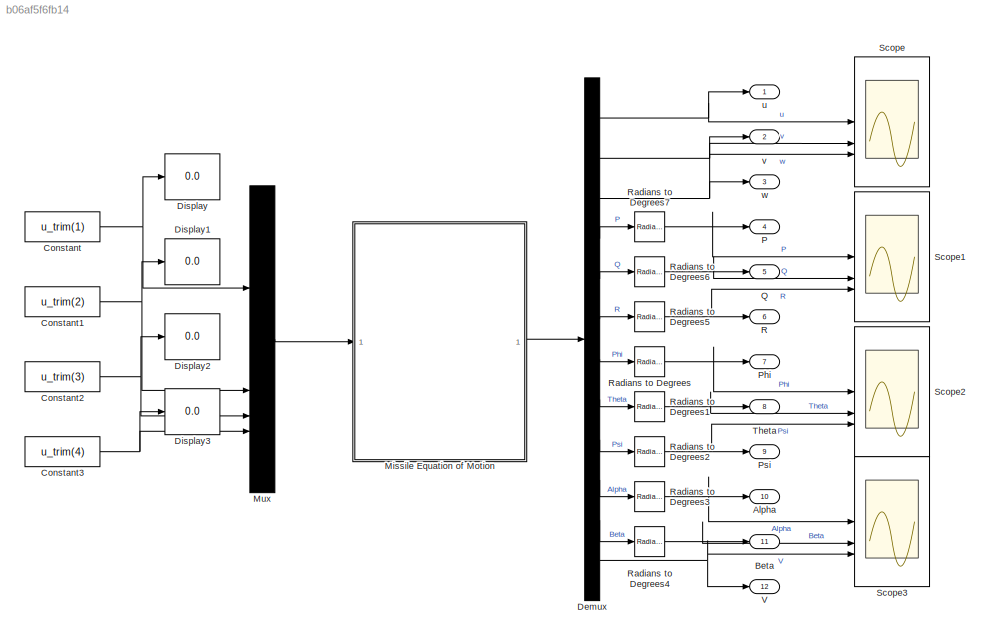
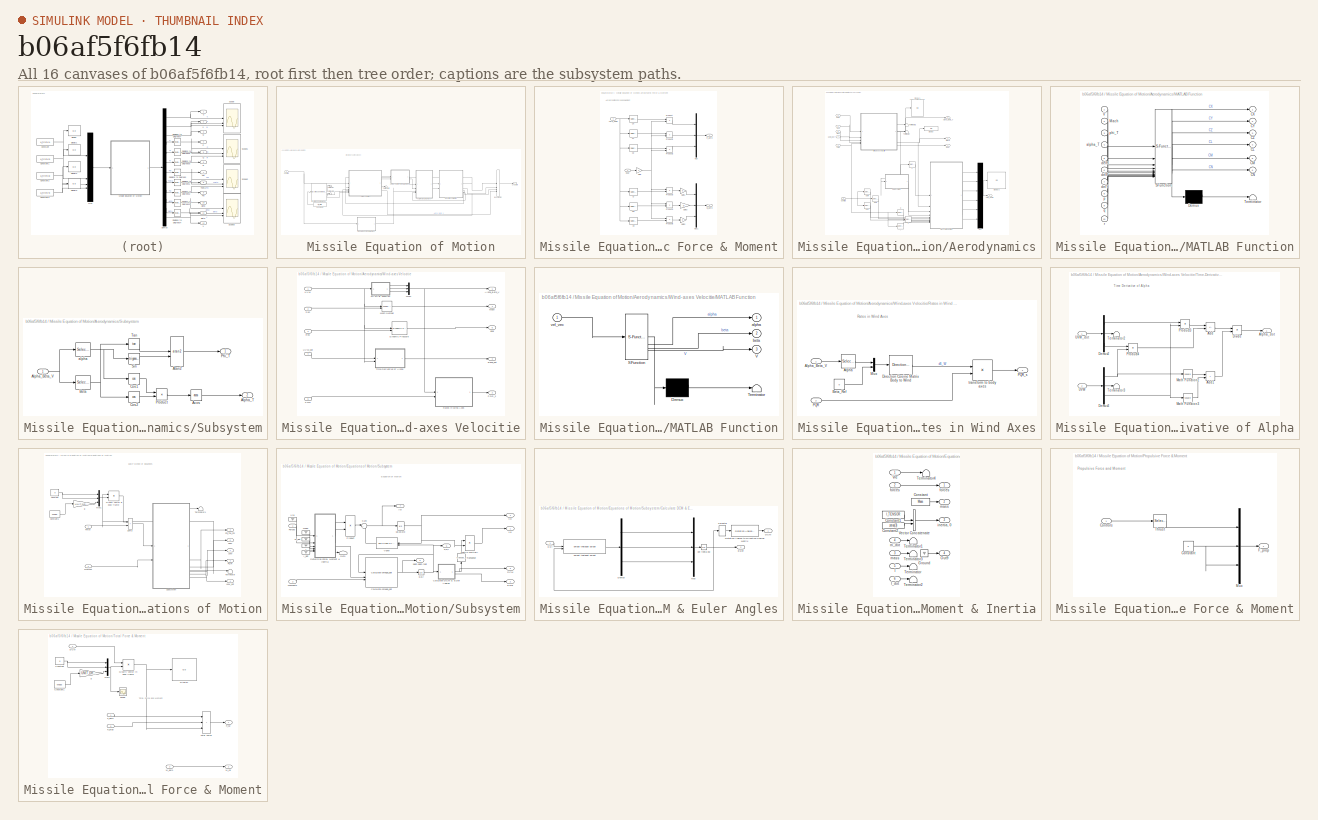
[diagram: thumbnail index - all 16 canvases of the model, root first then tree order]
MODEL slx_b06af5f6fb14
KIND model
CONFIG AbsTol = auto
CONFIG EnableMultiTasking = off
CONFIG FixedStep = auto
CONFIG InitFcn = UAV_Data\nSim_Parameters
CONFIG MaxStep = auto
CONFIG MinStep = auto
CONFIG RelTol = 1e-3
CONFIG SampleTimeConstraint = Unconstrained
CONFIG SolverName = VariableStepAuto
CONFIG StartTime = 0.0
CONFIG StopTime = 50
BLOCK [Outport] Alpha
  Port = 10
BLOCK [Outport] Beta
  Port = 11
BLOCK [Constant] Constant
  Value = u_trim(1)
BLOCK [Constant] Constant1
  Value = u_trim(2)
BLOCK [Constant] Constant2
  Value = u_trim(3)
BLOCK [Constant] Constant3
  Value = u_trim(4)
BLOCK [Demux] Demux
  Outputs = 12
BLOCK [Display] Display
  Decimation = 1
BLOCK [Display] Display1
  Decimation = 1
BLOCK [Display] Display2
  Decimation = 1
BLOCK [Display] Display3
  Decimation = 1
BLOCK [SubSystem] Missile Equation of Motion
BLOCK [SubSystem] Missile Equation of Motion/Aerodynamic Force & Moment
BLOCK [Inport] Missile Equation of Motion/Aerodynamic Force & Moment/Aero_Coeff
BLOCK [Selector] Missile Equation of Motion/Aerodynamic Force & Moment/CX
  IndexOptions = Index vector (dialog)
  Indices = [1]
  InputPortWidth = 6
  OutputSizes = 1
BLOCK [Selector] Missile Equation of Motion/Aerodynamic Force & Moment/CY
  IndexOptions = Index vector (dialog)
  Indices = [2]
  InputPortWidth = 6
  OutputSizes = 1
BLOCK [Selector] Missile Equation of Motion/Aerodynamic Force & Moment/CZ
  IndexOptions = Index vector (dialog)
  Indices = [3]
  InputPortWidth = 6
  OutputSizes = 1
BLOCK [Selector] Missile Equation of Motion/Aerodynamic Force & Moment/Cl
  IndexOptions = Index vector (dialog)
  Indices = [4]
  InputPortWidth = 6
  OutputSizes = 1
BLOCK [Selector] Missile Equation of Motion/Aerodynamic Force & Moment/Cm
  IndexOptions = Index vector (dialog)
  Indices = [5]
  InputPortWidth = 6
  OutputSizes = 1
BLOCK [Selector] Missile Equation of Motion/Aerodynamic Force & Moment/Cn
  IndexOptions = Index vector (dialog)
  Indices = [6]
  InputPortWidth = 6
  OutputSizes = 1
BLOCK [Outport] Missile Equation of Motion/Aerodynamic Force & Moment/F_aero
BLOCK [Gain] Missile Equation of Motion/Aerodynamic Force & Moment/Gain
  Gain = S
BLOCK [Gain] Missile Equation of Motion/Aerodynamic Force & Moment/Gain1
  Gain = D
BLOCK [Gain] Missile Equation of Motion/Aerodynamic Force & Moment/Gain2
  Gain = D
BLOCK [Gain] Missile Equation of Motion/Aerodynamic Force & Moment/Gain3
  Gain = D
BLOCK [Outport] Missile Equation of Motion/Aerodynamic Force & Moment/M_aero
  Port = 2
BLOCK [Mux] Missile Equation of Motion/Aerodynamic Force & Moment/Mux
  DisplayOption = bar
  Inputs = 3
BLOCK [Mux] Missile Equation of Motion/Aerodynamic Force & Moment/Mux1
  DisplayOption = bar
  Inputs = 3
BLOCK [Product] Missile Equation of Motion/Aerodynamic Force & Moment/Product
BLOCK [Product] Missile Equation of Motion/Aerodynamic Force & Moment/Product1
BLOCK [Product] Missile Equation of Motion/Aerodynamic Force & Moment/Product2
BLOCK [Product] Missile Equation of Motion/Aerodynamic Force & Moment/Product3
BLOCK [Product] Missile Equation of Motion/Aerodynamic Force & Moment/Product4
BLOCK [Product] Missile Equation of Motion/Aerodynamic Force & Moment/Product5
BLOCK [Inport] Missile Equation of Motion/Aerodynamic Force & Moment/qbar
  Port = 2
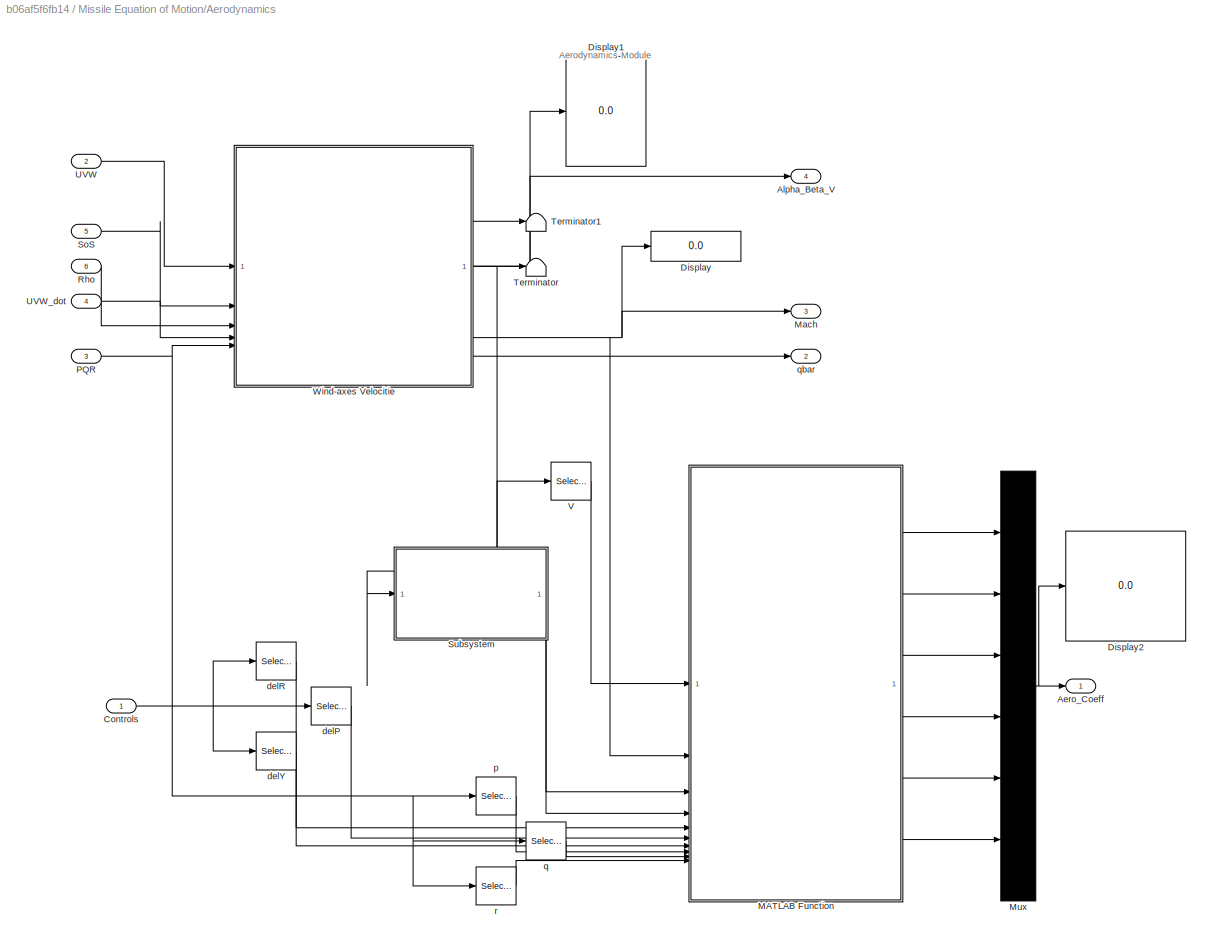
BLOCK [SubSystem] Missile Equation of Motion/Aerodynamics
BLOCK [Outport] Missile Equation of Motion/Aerodynamics/Aero_Coeff
BLOCK [Outport] Missile Equation of Motion/Aerodynamics/Alpha_Beta_V
  Port = 4
BLOCK [Inport] Missile Equation of Motion/Aerodynamics/Controls
BLOCK [Display] Missile Equation of Motion/Aerodynamics/Display
  Decimation = 1
BLOCK [Display] Missile Equation of Motion/Aerodynamics/Display1
  Decimation = 1
BLOCK [Display] Missile Equation of Motion/Aerodynamics/Display2
  Decimation = 1
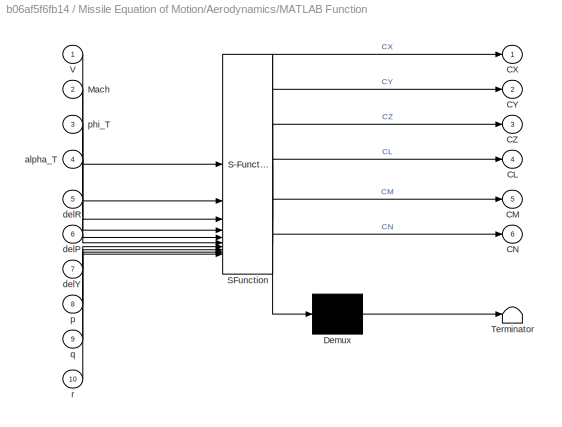
BLOCK [SubSystem] Missile Equation of Motion/Aerodynamics/MATLAB Function
  ErrorFcn = Stateflow.Translate.translate
  LibrarySourceBlock = simulink/User-Defined\nFunctions/MATLAB Function
  PermitHierarchicalResolution = ExplicitOnly
  SFBlockType = MATLAB Function
  TreatAsAtomicUnit = on
BLOCK [Demux] Missile Equation of Motion/Aerodynamics/MATLAB Function/ Demux 
  Outputs = 1
BLOCK [S-Function] Missile Equation of Motion/Aerodynamics/MATLAB Function/ SFunction 
  EnableBusSupport = on
  FunctionName = sf_sfun
  PortCounts = [10 7]
  SFcnIsStateOwnerBlock = off
  SFunctionDeploymentMode = off
  Tag = Stateflow S-Function 2
BLOCK [Terminator] Missile Equation of Motion/Aerodynamics/MATLAB Function/ Terminator 
BLOCK [Outport] Missile Equation of Motion/Aerodynamics/MATLAB Function/CL
  Port = 4
BLOCK [Outport] Missile Equation of Motion/Aerodynamics/MATLAB Function/CM
  Port = 5
BLOCK [Outport] Missile Equation of Motion/Aerodynamics/MATLAB Function/CN
  Port = 6
BLOCK [Outport] Missile Equation of Motion/Aerodynamics/MATLAB Function/CX
BLOCK [Outport] Missile Equation of Motion/Aerodynamics/MATLAB Function/CY
  Port = 2
BLOCK [Outport] Missile Equation of Motion/Aerodynamics/MATLAB Function/CZ
  Port = 3
BLOCK [Inport] Missile Equation of Motion/Aerodynamics/MATLAB Function/Mach
  Port = 2
BLOCK [Inport] Missile Equation of Motion/Aerodynamics/MATLAB Function/V
BLOCK [Inport] Missile Equation of Motion/Aerodynamics/MATLAB Function/alpha_T
  Port = 4
BLOCK [Inport] Missile Equation of Motion/Aerodynamics/MATLAB Function/delP
  Port = 6
BLOCK [Inport] Missile Equation of Motion/Aerodynamics/MATLAB Function/delR
  Port = 5
BLOCK [Inport] Missile Equation of Motion/Aerodynamics/MATLAB Function/delY
  Port = 7
BLOCK [Inport] Missile Equation of Motion/Aerodynamics/MATLAB Function/p
  Port = 8
BLOCK [Inport] Missile Equation of Motion/Aerodynamics/MATLAB Function/phi_T
  Port = 3
BLOCK [Inport] Missile Equation of Motion/Aerodynamics/MATLAB Function/q
  Port = 9
BLOCK [Inport] Missile Equation of Motion/Aerodynamics/MATLAB Function/r
  Port = 10
BLOCK [Outport] Missile Equation of Motion/Aerodynamics/Mach
  Port = 3
BLOCK [Mux] Missile Equation of Motion/Aerodynamics/Mux
  DisplayOption = bar
  Inputs = 6
BLOCK [Inport] Missile Equation of Motion/Aerodynamics/PQR
  Port = 3
BLOCK [Inport] Missile Equation of Motion/Aerodynamics/Rho
  Port = 6
BLOCK [Inport] Missile Equation of Motion/Aerodynamics/SoS
  Port = 5
BLOCK [SubSystem] Missile Equation of Motion/Aerodynamics/Subsystem
BLOCK [Trigonometry] Missile Equation of Motion/Aerodynamics/Subsystem/Acos
  Operator = acos
BLOCK [Inport] Missile Equation of Motion/Aerodynamics/Subsystem/Alpha_Beta_V
BLOCK [Outport] Missile Equation of Motion/Aerodynamics/Subsystem/Alpha_T
  Port = 2
BLOCK [Trigonometry] Missile Equation of Motion/Aerodynamics/Subsystem/Atan2
  Operator = atan2
BLOCK [Selector] Missile Equation of Motion/Aerodynamics/Subsystem/Beta
  IndexOptions = Index vector (dialog)
  Indices = [2]
  InputPortWidth = 3
  OutputSizes = 1
BLOCK [Trigonometry] Missile Equation of Motion/Aerodynamics/Subsystem/Cos1
  Operator = cos
BLOCK [Trigonometry] Missile Equation of Motion/Aerodynamics/Subsystem/Cos2
  Operator = cos
BLOCK [Outport] Missile Equation of Motion/Aerodynamics/Subsystem/Phi_T
BLOCK [Product] Missile Equation of Motion/Aerodynamics/Subsystem/Product
BLOCK [Trigonometry] Missile Equation of Motion/Aerodynamics/Subsystem/Sin
BLOCK [Trigonometry] Missile Equation of Motion/Aerodynamics/Subsystem/Tan
  Operator = tan
BLOCK [Selector] Missile Equation of Motion/Aerodynamics/Subsystem/alpha
  IndexOptions = Index vector (dialog)
  Indices = [1]
  InputPortWidth = 3
  OutputSizes = 1
BLOCK [Terminator] Missile Equation of Motion/Aerodynamics/Terminator
BLOCK [Terminator] Missile Equation of Motion/Aerodynamics/Terminator1
BLOCK [Inport] Missile Equation of Motion/Aerodynamics/UVW
  Port = 2
BLOCK [Inport] Missile Equation of Motion/Aerodynamics/UVW_dot 
  Port = 4
BLOCK [Selector] Missile Equation of Motion/Aerodynamics/V
  IndexOptions = Index vector (dialog)
  Indices = [3]
  InputPortWidth = 3
  OutputSizes = 1
BLOCK [SubSystem] Missile Equation of Motion/Aerodynamics/Wind-axes Velocitie
BLOCK [Outport] Missile Equation of Motion/Aerodynamics/Wind-axes Velocitie/Alpha_Beta_V
BLOCK [Reference] Missile Equation of Motion/Aerodynamics/Wind-axes Velocitie/Dynamic Pressure  REF=aerolibasang/Dynamic Pressure
  SourceBlock = aerolibasang/Dynamic Pressure
  SourceType = Dynamic Pressure
BLOCK [SubSystem] Missile Equation of Motion/Aerodynamics/Wind-axes Velocitie/MATLAB Function
  ErrorFcn = Stateflow.Translate.translate
  LibrarySourceBlock = simulink/User-Defined\nFunctions/MATLAB Function
  PermitHierarchicalResolution = ExplicitOnly
  SFBlockType = MATLAB Function
  TreatAsAtomicUnit = on
BLOCK [Demux] Missile Equation of Motion/Aerodynamics/Wind-axes Velocitie/MATLAB Function/ Demux 
  Outputs = 1
BLOCK [S-Function] Missile Equation of Motion/Aerodynamics/Wind-axes Velocitie/MATLAB Function/ SFunction 
  EnableBusSupport = on
  FunctionName = sf_sfun
  PortCounts = [1 4]
  SFcnIsStateOwnerBlock = off
  SFunctionDeploymentMode = off
  Tag = Stateflow S-Function 1
BLOCK [Terminator] Missile Equation of Motion/Aerodynamics/Wind-axes Velocitie/MATLAB Function/ Terminator 
BLOCK [Outport] Missile Equation of Motion/Aerodynamics/Wind-axes Velocitie/MATLAB Function/V
  Port = 3
BLOCK [Outport] Missile Equation of Motion/Aerodynamics/Wind-axes Velocitie/MATLAB Function/alpha
BLOCK [Outport] Missile Equation of Motion/Aerodynamics/Wind-axes Velocitie/MATLAB Function/beta
  Port = 2
BLOCK [Inport] Missile Equation of Motion/Aerodynamics/Wind-axes Velocitie/MATLAB Function/vel_vec
BLOCK [Outport] Missile Equation of Motion/Aerodynamics/Wind-axes Velocitie/Mach
  Port = 4
BLOCK [Reference] Missile Equation of Motion/Aerodynamics/Wind-axes Velocitie/Mach Number  REF=aerolibasang/Mach Number
  SourceBlock = aerolibasang/Mach Number
  SourceType = Mach Number
BLOCK [Mux] Missile Equation of Motion/Aerodynamics/Wind-axes Velocitie/Mux1
  DisplayOption = bar
  Inputs = 3
BLOCK [Inport] Missile Equation of Motion/Aerodynamics/Wind-axes Velocitie/PQR
  Port = 5
BLOCK [Outport] Missile Equation of Motion/Aerodynamics/Wind-axes Velocitie/PQR_s
  Port = 2
BLOCK [SubSystem] Missile Equation of Motion/Aerodynamics/Wind-axes Velocitie/Rates in Wind Axes
BLOCK [Selector] Missile Equation of Motion/Aerodynamics/Wind-axes Velocitie/Rates in Wind Axes/Alpha
  IndexOptions = Index vector (dialog)
  Indices = [1]
  InputPortWidth = 3
  OutputSizes = 1
BLOCK [Inport] Missile Equation of Motion/Aerodynamics/Wind-axes Velocitie/Rates in Wind Axes/Alpha_Beta_V
BLOCK [Constant] Missile Equation of Motion/Aerodynamics/Wind-axes Velocitie/Rates in Wind Axes/Beta_Ref
  Value = 0
BLOCK [Reference] Missile Equation of Motion/Aerodynamics/Wind-axes Velocitie/Rates in Wind Axes/Direction Cosine Matrix Body to Wind  REF=aerolibtransform2/Direction Cosine Matrix
Body to Wind
  SourceBlock = aerolibtransform2/Direction Cosine Matrix\nBody to Wind
  SourceType = DCM Body to Wind
BLOCK [Mux] Missile Equation of Motion/Aerodynamics/Wind-axes Velocitie/Rates in Wind Axes/Mux
  DisplayOption = bar
  Inputs = 2
BLOCK [Inport] Missile Equation of Motion/Aerodynamics/Wind-axes Velocitie/Rates in Wind Axes/PQR
  Port = 2
BLOCK [Outport] Missile Equation of Motion/Aerodynamics/Wind-axes Velocitie/Rates in Wind Axes/PQR_s
BLOCK [Product] Missile Equation of Motion/Aerodynamics/Wind-axes Velocitie/Rates in Wind Axes/transform to body axes
  InputSameDT = on
  Inputs = **
  Multiplication = Matrix(*)
  OutDataTypeStr = Inherit: Same as first input
  SaturateOnIntegerOverflow = on
BLOCK [Inport] Missile Equation of Motion/Aerodynamics/Wind-axes Velocitie/Rho
  Port = 3
BLOCK [Inport] Missile Equation of Motion/Aerodynamics/Wind-axes Velocitie/SoS
  Port = 2
BLOCK [SubSystem] Missile Equation of Motion/Aerodynamics/Wind-axes Velocitie/Time-Derivative of Alpha
BLOCK [Sum] Missile Equation of Motion/Aerodynamics/Wind-axes Velocitie/Time-Derivative of Alpha/Add
  IconShape = rectangular
  Inputs = -+
BLOCK [Sum] Missile Equation of Motion/Aerodynamics/Wind-axes Velocitie/Time-Derivative of Alpha/Add1
  IconShape = rectangular
BLOCK [Outport] Missile Equation of Motion/Aerodynamics/Wind-axes Velocitie/Time-Derivative of Alpha/Alpha_dot
BLOCK [Demux] Missile Equation of Motion/Aerodynamics/Wind-axes Velocitie/Time-Derivative of Alpha/Demux2
  Outputs = 3
BLOCK [Demux] Missile Equation of Motion/Aerodynamics/Wind-axes Velocitie/Time-Derivative of Alpha/Demux3
  Outputs = 3
BLOCK [Product] Missile Equation of Motion/Aerodynamics/Wind-axes Velocitie/Time-Derivative of Alpha/Divide
  Inputs = */
BLOCK [Math] Missile Equation of Motion/Aerodynamics/Wind-axes Velocitie/Time-Derivative of Alpha/Math Function2
  Operator = square
  SignedPower = on
BLOCK [Math] Missile Equation of Motion/Aerodynamics/Wind-axes Velocitie/Time-Derivative of Alpha/Math Function3
  Operator = square
  SignedPower = on
BLOCK [Product] Missile Equation of Motion/Aerodynamics/Wind-axes Velocitie/Time-Derivative of Alpha/Product3
BLOCK [Product] Missile Equation of Motion/Aerodynamics/Wind-axes Velocitie/Time-Derivative of Alpha/Product4
BLOCK [Terminator] Missile Equation of Motion/Aerodynamics/Wind-axes Velocitie/Time-Derivative of Alpha/Terminator2
BLOCK [Terminator] Missile Equation of Motion/Aerodynamics/Wind-axes Velocitie/Time-Derivative of Alpha/Terminator3
BLOCK [Inport] Missile Equation of Motion/Aerodynamics/Wind-axes Velocitie/Time-Derivative of Alpha/UVW
  Port = 2
BLOCK [Inport] Missile Equation of Motion/Aerodynamics/Wind-axes Velocitie/Time-Derivative of Alpha/UVW_dot
BLOCK [Inport] Missile Equation of Motion/Aerodynamics/Wind-axes Velocitie/UVW
BLOCK [Inport] Missile Equation of Motion/Aerodynamics/Wind-axes Velocitie/UVW_dot
  Port = 4
BLOCK [Outport] Missile Equation of Motion/Aerodynamics/Wind-axes Velocitie/alpha_dot
  Port = 3
BLOCK [Outport] Missile Equation of Motion/Aerodynamics/Wind-axes Velocitie/qbar
  Port = 5
BLOCK [Selector] Missile Equation of Motion/Aerodynamics/delP
  IndexOptions = Index vector (dialog)
  Indices = [3]
  InputPortWidth = 4
  OutputSizes = 1
BLOCK [Selector] Missile Equation of Motion/Aerodynamics/delR
  IndexOptions = Index vector (dialog)
  Indices = [2]
  InputPortWidth = 4
  OutputSizes = 1
BLOCK [Selector] Missile Equation of Motion/Aerodynamics/delY
  IndexOptions = Index vector (dialog)
  Indices = [4]
  InputPortWidth = 4
  OutputSizes = 1
BLOCK [Selector] Missile Equation of Motion/Aerodynamics/p
  IndexOptions = Index vector (dialog)
  Indices = [1]
  InputPortWidth = 3
  OutputSizes = 1
BLOCK [Selector] Missile Equation of Motion/Aerodynamics/q
  IndexOptions = Index vector (dialog)
  Indices = [2]
  InputPortWidth = 3
  OutputSizes = 1
BLOCK [Outport] Missile Equation of Motion/Aerodynamics/qbar
  Port = 2
BLOCK [Selector] Missile Equation of Motion/Aerodynamics/r
  IndexOptions = Index vector (dialog)
  Indices = [3]
  InputPortWidth = 3
  OutputSizes = 1
BLOCK [BusCreator] Missile Equation of Motion/Bus Creator
  DisplayOption = bar
  InheritFromInputs = on
  Inputs = 4
BLOCK [Constant] Missile Equation of Motion/Constant1
  Value = Alt_Trim
BLOCK [Inport] Missile Equation of Motion/Controls
BLOCK [SubSystem] Missile Equation of Motion/Equations of Motion
BLOCK [Constant] Missile Equation of Motion/Equations of Motion/Constant
  Value = 0
BLOCK [Constant] Missile Equation of Motion/Equations of Motion/Constant1
  Value = Mass
BLOCK [Outport] Missile Equation of Motion/Equations of Motion/DCM
  Port = 5
BLOCK [Inport] Missile Equation of Motion/Equations of Motion/Force
  PortDimensions = 3
BLOCK [Product] Missile Equation of Motion/Equations of Motion/Gravity vector in body frame 
  InputSameDT = on
  Multiplication = Matrix(*)
  OutDataTypeStr = Inherit: Same as first input
  SaturateOnIntegerOverflow = on
BLOCK [Inport] Missile Equation of Motion/Equations of Motion/Moment
  Port = 2
  PortDimensions = 3
BLOCK [Mux] Missile Equation of Motion/Equations of Motion/Mux1
  DisplayOption = bar
  Inputs = 3
BLOCK [Outport] Missile Equation of Motion/Equations of Motion/PQR
  Port = 2
BLOCK [Outport] Missile Equation of Motion/Equations of Motion/Phi_The_Psi
  Port = 3
BLOCK [SubSystem] Missile Equation of Motion/Equations of Motion/Subsystem
BLOCK [Outport] Missile Equation of Motion/Equations of Motion/Subsystem/Ab
  Port = 7
BLOCK [SubSystem] Missile Equation of Motion/Equations of Motion/Subsystem/Calculate DCM & Euler Angles
BLOCK [Outport] Missile Equation of Motion/Equations of Motion/Subsystem/Calculate DCM & Euler Angles/DCM
BLOCK [Demux] Missile Equation of Motion/Equations of Motion/Subsystem/Calculate DCM & Euler Angles/Demux
  Outputs = 3
BLOCK [Outport] Missile Equation of Motion/Equations of Motion/Subsystem/Calculate DCM & Euler Angles/Euler
  Port = 2
BLOCK [Mux] Missile Equation of Motion/Equations of Motion/Subsystem/Calculate DCM & Euler Angles/Mux
  DisplayOption = bar
  Inputs = 3
BLOCK [Reference] Missile Equation of Motion/Equations of Motion/Subsystem/Calculate DCM & Euler Angles/Rotation Angles to Direction Cosine Matrix  REF=sharedtransform/Rotation Angles to
Direction Cosine Matrix
  AttributesFormatString = Rotation Order: %<rotationOrder>
  LibrarySourceBlock = aerolibtransform2/Rotation Angles to\nDirection Cosine Matrix
  SourceBlock = sharedtransform/Rotation Angles to\nDirection Cosine Matrix
  SourceType = Ang2DCM
BLOCK [Selector] Missile Equation of Motion/Equations of Motion/Subsystem/Calculate DCM & Euler Angles/Selector
  IndexOptions = Index vector (dialog)
  Indices = [3 2 1]
  InputPortWidth = 3
  OutputSizes = 1
BLOCK [Inport] Missile Equation of Motion/Equations of Motion/Subsystem/Calculate DCM & Euler Angles/p q r 
BLOCK [Integrator] Missile Equation of Motion/Equations of Motion/Subsystem/Calculate DCM & Euler Angles/phi theta psi
  InitialCondition = [x_trim(7) x_trim(8) x_trim(9)]
BLOCK [Reference] Missile Equation of Motion/Equations of Motion/Subsystem/Calculate DCM & Euler Angles/phidot thetadot psidot  REF=shared6dofsys/DCM & Euler Angles (Euler)/phidot  (lib defined in slx_91fbb8bad28b)
thetadot
psidot
  SourceBlock = shared6dofsys/DCM & Euler Angles (Euler)/phidot\nthetadot\npsidot
  SourceType = SubSystem
BLOCK [Reference] Missile Equation of Motion/Equations of Motion/Subsystem/Calculate omega_dot  REF=shared6dofsys/Calculate omega_dot  (lib defined in slx_91fbb8bad28b)
  SourceBlock = shared6dofsys/Calculate omega_dot
BLOCK [Outport] Missile Equation of Motion/Equations of Motion/Subsystem/DCM
  Port = 3
BLOCK [SubSystem] Missile Equation of Motion/Equations of Motion/Subsystem/Determine Force, Moment & Inertia
BLOCK [Constant] Missile Equation of Motion/Equations of Motion/Subsystem/Determine Force, Moment & Inertia/Constant
  OutDataTypeStr = Inherit: Inherit via back propagation
  Value = Mass
BLOCK [Constant] Missile Equation of Motion/Equations of Motion/Subsystem/Determine Force, Moment & Inertia/Constant1
  OutDataTypeStr = Inherit: Inherit via back propagation
  Value = I_TENSOR
BLOCK [Constant] Missile Equation of Motion/Equations of Motion/Subsystem/Determine Force, Moment & Inertia/Constant2
  Value = zeros(3)
BLOCK [Ground] Missile Equation of Motion/Equations of Motion/Subsystem/Determine Force, Moment & Inertia/Ground
BLOCK [Inport] Missile Equation of Motion/Equations of Motion/Subsystem/Determine Force, Moment & Inertia/I
  OutDataTypeStr = double
  Port = 5
BLOCK [Inport] Missile Equation of Motion/Equations of Motion/Subsystem/Determine Force, Moment & Inertia/I_dot
  OutDataTypeStr = double
  Port = 6
BLOCK [Outport] Missile Equation of Motion/Equations of Motion/Subsystem/Determine Force, Moment & Inertia/Out9
  Port = 4
BLOCK [Terminator] Missile Equation of Motion/Equations of Motion/Subsystem/Determine Force, Moment & Inertia/Terminator
BLOCK [Terminator] Missile Equation of Motion/Equations of Motion/Subsystem/Determine Force, Moment & Inertia/Terminator1
BLOCK [Terminator] Missile Equation of Motion/Equations of Motion/Subsystem/Determine Force, Moment & Inertia/Terminator2
BLOCK [Terminator] Missile Equation of Motion/Equations of Motion/Subsystem/Determine Force, Moment & Inertia/Terminator3
BLOCK [Terminator] Missile Equation of Motion/Equations of Motion/Subsystem/Determine Force, Moment & Inertia/Terminator4
BLOCK [Concatenate] Missile Equation of Motion/Equations of Motion/Subsystem/Determine Force, Moment & Inertia/Vector Concatenate
  Mode = Multidimensional array
BLOCK [Inport] Missile Equation of Motion/Equations of Motion/Subsystem/Determine Force, Moment & Inertia/Vre
BLOCK [Inport] Missile Equation of Motion/Equations of Motion/Subsystem/Determine Force, Moment & Inertia/forces
  Port = 2
BLOCK [Outport] Missile Equation of Motion/Equations of Motion/Subsystem/Determine Force, Moment & Inertia/forces 
BLOCK [Outport] Missile Equation of Motion/Equations of Motion/Subsystem/Determine Force, Moment & Inertia/inertia, 0
  Port = 3
BLOCK [Inport] Missile Equation of Motion/Equations of Motion/Subsystem/Determine Force, Moment & Inertia/m_dot
  OutDataTypeStr = double
  Port = 4
BLOCK [Outport] Missile Equation of Motion/Equations of Motion/Subsystem/Determine Force, Moment & Inertia/mass
  Port = 2
BLOCK [Inport] Missile Equation of Motion/Equations of Motion/Subsystem/Determine Force, Moment & Inertia/mass 
  Port = 3
BLOCK [Outport] Missile Equation of Motion/Equations of Motion/Subsystem/Euler
  Port = 2
BLOCK [Inport] Missile Equation of Motion/Equations of Motion/Subsystem/Forces
  PortDimensions = 3
BLOCK [Ground] Missile Equation of Motion/Equations of Motion/Subsystem/I
BLOCK [Ground] Missile Equation of Motion/Equations of Motion/Subsystem/I_dot
BLOCK [Product] Missile Equation of Motion/Equations of Motion/Subsystem/Matrix Multiply
  Multiplication = Matrix(*)
BLOCK [Inport] Missile Equation of Motion/Equations of Motion/Subsystem/Moments
  Port = 2
  PortDimensions = 3
BLOCK [Terminator] Missile Equation of Motion/Equations of Motion/Subsystem/Out9
BLOCK [Product] Missile Equation of Motion/Equations of Motion/Subsystem/Product
  Inputs = */
  OutDataTypeStr = Inherit: Same as first input
  SaturateOnIntegerOverflow = on
BLOCK [Sum] Missile Equation of Motion/Equations of Motion/Subsystem/Sum
  Inputs = |++
  SaturateOnIntegerOverflow = on
BLOCK [Math] Missile Equation of Motion/Equations of Motion/Subsystem/Transpose
  NameLocation = right
  Operator = transpose
  SignedPower = on
BLOCK [Outport] Missile Equation of Motion/Equations of Motion/Subsystem/Vb
  Port = 4
BLOCK [Reference] Missile Equation of Motion/Equations of Motion/Subsystem/Vbxw  REF=sharedutil/3x3 Cross Product
  LibrarySourceBlock = aerolibutil/3x3 Cross Product
  SourceBlock = sharedutil/3x3 Cross Product
  SourceType = CrossProduct
BLOCK [Outport] Missile Equation of Motion/Equations of Motion/Subsystem/Ve
BLOCK [Ground] Missile Equation of Motion/Equations of Motion/Subsystem/Vre
BLOCK [Ground] Missile Equation of Motion/Equations of Motion/Subsystem/m_dot
BLOCK [Ground] Missile Equation of Motion/Equations of Motion/Subsystem/mass
BLOCK [Outport] Missile Equation of Motion/Equations of Motion/Subsystem/p,q,r
  Port = 5
BLOCK [Integrator] Missile Equation of Motion/Equations of Motion/Subsystem/p,q,r 
  InitialCondition = [x_trim(4) x_trim(5) x_trim(6)]
BLOCK [Outport] Missile Equation of Motion/Equations of Motion/Subsystem/pdot,qdot,rdot
  Port = 6
BLOCK [Integrator] Missile Equation of Motion/Equations of Motion/Subsystem/ub,vb,wb
  InitialCondition = [x_trim(1) x_trim(2) x_trim(3)]
BLOCK [Sum] Missile Equation of Motion/Equations of Motion/Sum3
  IconShape = rectangular
  InputSameDT = on
  OutDataTypeStr = Inherit: Same as first input
  SaturateOnIntegerOverflow = on
BLOCK [Terminator] Missile Equation of Motion/Equations of Motion/Terminator
BLOCK [Terminator] Missile Equation of Motion/Equations of Motion/Terminator1
BLOCK [Outport] Missile Equation of Motion/Equations of Motion/UVW
BLOCK [Outport] Missile Equation of Motion/Equations of Motion/UVW_dot
  Port = 4
BLOCK [Gain] Missile Equation of Motion/Equations of Motion/g
  Gain = UNIT_GRAV
BLOCK [Reference] Missile Equation of Motion/ISA Atmosphere Model  REF=aerolibatmos2/ISA Atmosphere Model
  SourceBlock = aerolibatmos2/ISA Atmosphere Model
  SourceType = International Standard Atmosphere Model
BLOCK [SubSystem] Missile Equation of Motion/Propulsive Force & Moment
BLOCK [Constant] Missile Equation of Motion/Propulsive Force & Moment/Constant
  Value = 0
BLOCK [Inport] Missile Equation of Motion/Propulsive Force & Moment/Controls
BLOCK [Outport] Missile Equation of Motion/Propulsive Force & Moment/F_prop
BLOCK [Mux] Missile Equation of Motion/Propulsive Force & Moment/Mux
  DisplayOption = bar
  Inputs = 3
BLOCK [Selector] Missile Equation of Motion/Propulsive Force & Moment/Thrust
  IndexOptions = Index vector (dialog)
  Indices = [1]
  InputPortWidth = 4
  OutputSizes = 1
BLOCK [Terminator] Missile Equation of Motion/Terminator
BLOCK [Terminator] Missile Equation of Motion/Terminator1
BLOCK [Terminator] Missile Equation of Motion/Terminator2
BLOCK [SubSystem] Missile Equation of Motion/Total Force & Moment
BLOCK [Constant] Missile Equation of Motion/Total Force & Moment/Constant
  Value = 0
BLOCK [Constant] Missile Equation of Motion/Total Force & Moment/Constant1
  Value = Mass
BLOCK [Inport] Missile Equation of Motion/Total Force & Moment/DCM
  Port = 4
BLOCK [Display] Missile Equation of Motion/Total Force & Moment/Display
  Decimation = 1
BLOCK [Inport] Missile Equation of Motion/Total Force & Moment/F_aero
  PortDimensions = 3
BLOCK [Outport] Missile Equation of Motion/Total Force & Moment/F_cg
BLOCK [Inport] Missile Equation of Motion/Total Force & Moment/F_prop
  Port = 3
  PortDimensions = 3
BLOCK [Product] Missile Equation of Motion/Total Force & Moment/Gravity vector in body frame 
  InputSameDT = on
  Multiplication = Matrix(*)
  OutDataTypeStr = Inherit: Same as first input
  SaturateOnIntegerOverflow = on
BLOCK [Inport] Missile Equation of Motion/Total Force & Moment/M_aero
  Port = 2
  PortDimensions = 3
BLOCK [Outport] Missile Equation of Motion/Total Force & Moment/M_cg
  Port = 2
BLOCK [Mux] Missile Equation of Motion/Total Force & Moment/Mux1
  DisplayOption = bar
  Inputs = 3
BLOCK [Scope] Missile Equation of Motion/Total Force & Moment/Scope
  Floating = off
  NumInputPorts = 1
  ScopeSpecificationString = Simulink.scopes.TimeScopeBlockCfg('CurrentConfiguration', extmgr.ConfigurationSet(extmgr.Configuration('Core','General UI',true),extmgr.Configuration('Core','Source UI',true),extmgr.Configuration('Sources','WiredSimulink',true,'DataLoggingVariableName','ScopeData8'),extmgr.Configuration('Visuals','Time Domain',true,'SerializedDisplays',{struct('MinYLimReal','-36.7875','MaxYLimReal','331.0875','YLa...<+1545ch>
BLOCK [Sum] Missile Equation of Motion/Total Force & Moment/Total Force
  IconShape = rectangular
  InputSameDT = on
  Inputs = +++
  OutDataTypeStr = Inherit: Same as first input
  SaturateOnIntegerOverflow = on
BLOCK [Gain] Missile Equation of Motion/Total Force & Moment/g
  Gain = UNIT_GRAV
BLOCK [Outport] Missile Equation of Motion/UAS State
BLOCK [Mux] Mux
  DisplayOption = bar
BLOCK [Outport] P
  Port = 4
BLOCK [Outport] Phi
  Port = 7
BLOCK [Outport] Psi
  Port = 9
BLOCK [Outport] Q
  Port = 5
BLOCK [Outport] R
  Port = 6
BLOCK [Reference] Radians to Degrees  REF=simulink_extras/Transformations/Radians
to Degrees
  SourceBlock = simulink_extras/Transformations/Radians\nto Degrees
  SourceType = RadiansToDegrees
BLOCK [Reference] Radians to Degrees1  REF=simulink_extras/Transformations/Radians
to Degrees
  SourceBlock = simulink_extras/Transformations/Radians\nto Degrees
  SourceType = RadiansToDegrees
BLOCK [Reference] Radians to Degrees2  REF=simulink_extras/Transformations/Radians
to Degrees
  SourceBlock = simulink_extras/Transformations/Radians\nto Degrees
  SourceType = RadiansToDegrees
BLOCK [Reference] Radians to Degrees3  REF=simulink_extras/Transformations/Radians
to Degrees
  SourceBlock = simulink_extras/Transformations/Radians\nto Degrees
  SourceType = RadiansToDegrees
BLOCK [Reference] Radians to Degrees4  REF=simulink_extras/Transformations/Radians
to Degrees
  SourceBlock = simulink_extras/Transformations/Radians\nto Degrees
  SourceType = RadiansToDegrees
BLOCK [Reference] Radians to Degrees5  REF=simulink_extras/Transformations/Radians
to Degrees
  SourceBlock = simulink_extras/Transformations/Radians\nto Degrees
  SourceType = RadiansToDegrees
BLOCK [Reference] Radians to Degrees6  REF=simulink_extras/Transformations/Radians
to Degrees
  SourceBlock = simulink_extras/Transformations/Radians\nto Degrees
  SourceType = RadiansToDegrees
BLOCK [Reference] Radians to Degrees7  REF=simulink_extras/Transformations/Radians
to Degrees
  SourceBlock = simulink_extras/Transformations/Radians\nto Degrees
  SourceType = RadiansToDegrees
BLOCK [Scope] Scope
  Floating = off
  NumInputPorts = 3
  ScopeSpecificationString = Simulink.scopes.TimeScopeBlockCfg('CurrentConfiguration', extmgr.ConfigurationSet(extmgr.Configuration('Core','General UI',true),extmgr.Configuration('Core','Source UI',true),extmgr.Configuration('Sources','WiredSimulink',true,'DataLoggingVariableName','ScopeData1'),extmgr.Configuration('Visuals','Time Domain',true,'SerializedDisplays',{struct('MinYLimReal','-29.75878','MaxYLimReal','267.829','YLa...<+2821ch>
BLOCK [Scope] Scope1
  Floating = off
  NumInputPorts = 3
  ScopeSpecificationString = Simulink.scopes.TimeScopeBlockCfg('CurrentConfiguration', extmgr.ConfigurationSet(extmgr.Configuration('Core','General UI',true),extmgr.Configuration('Core','Source UI',true),extmgr.Configuration('Sources','WiredSimulink',true,'DataLoggingVariableName','ScopeData2'),extmgr.Configuration('Visuals','Time Domain',true,'SerializedDisplays',{struct('MinYLimReal','-0.08','MaxYLimReal','0.08','YLabelReal...<+2958ch>
BLOCK [Scope] Scope2
  Floating = off
  NumInputPorts = 3
  ScopeSpecificationString = Simulink.scopes.TimeScopeBlockCfg('CurrentConfiguration', extmgr.ConfigurationSet(extmgr.Configuration('Core','General UI',true),extmgr.Configuration('Core','Source UI',true),extmgr.Configuration('Sources','WiredSimulink',true,'DataLoggingVariableName','ScopeData3'),extmgr.Configuration('Visuals','Time Domain',true,'SerializedDisplays',{struct('MinYLimReal','-0.24174','MaxYLimReal','2.17568','YLab...<+2956ch>
BLOCK [Scope] Scope3
  Floating = off
  NumInputPorts = 3
  ScopeSpecificationString = Simulink.scopes.TimeScopeBlockCfg('CurrentConfiguration', extmgr.ConfigurationSet(extmgr.Configuration('Core','General UI',true),extmgr.Configuration('Core','Source UI',true),extmgr.Configuration('Sources','WiredSimulink',true,'DataLoggingVariableName','ScopeData4'),extmgr.Configuration('Visuals','Time Domain',true,'SerializedDisplays',{struct('MinYLimReal','1.9','MaxYLimReal','2','YLabelReal','[d...<+2739ch>
BLOCK [Outport] Theta
  Port = 8
BLOCK [Outport] V
  Port = 12
BLOCK [Outport] u
BLOCK [Outport] v
  Port = 2
BLOCK [Outport] w
  Port = 3
ANNOTATION Missile Equation of Motion: Missile Dynamics Model
ANNOTATION Missile Equation of Motion/Aerodynamic Force & Moment: Aerodynamics Force and Moment
ANNOTATION Missile Equation of Motion/Aerodynamics: Aerodynamics Module
ANNOTATION Missile Equation of Motion/Aerodynamics/Wind-axes Velocitie/Rates in Wind Axes: Rates in Wind Axes
ANNOTATION Missile Equation of Motion/Aerodynamics/Wind-axes Velocitie/Time-Derivative of Alpha: Time Derivative of Alpha
ANNOTATION Missile Equation of Motion/Equations of Motion: 6DOF Motion of Equations
ANNOTATION Missile Equation of Motion/Equations of Motion/Subsystem: Equation of Motion
ANNOTATION Missile Equation of Motion/Propulsive Force & Moment: Propulsive Force and Moment
ANNOTATION Missile Equation of Motion/Total Force & Moment: Total Force and Moment
NET Constant1:1 -> Display1:1, Mux:2
NET Constant2:1 -> Display2:1, Mux:3
NET Constant3:1 -> Display3:1, Mux:4
NET Constant:1 -> Display:1, Mux:1
NET Demux:1 -> Scope:1, u:1
LINE Demux:10 -> Radians to Degrees3:1
LINE Demux:11 -> Radians to Degrees4:1
NET Demux:12 -> Scope3:3, V:1
NET Demux:2 -> Scope:2, v:1
NET Demux:3 -> Scope:3, w:1
LINE Demux:4 -> Radians to Degrees7:1
LINE Demux:5 -> Radians to Degrees6:1
LINE Demux:6 -> Radians to Degrees5:1
LINE Demux:7 -> Radians to Degrees:1
LINE Demux:8 -> Radians to Degrees1:1
LINE Demux:9 -> Radians to Degrees2:1
NET Missile Equation of Motion/Aerodynamic Force & Moment/Aero_Coeff:1 -> Missile Equation of Motion/Aerodynamic Force & Moment/CX:1, Missile Equation of Motion/Aerodynamic Force & Moment/CY:1, Missile Equation of Motion/Aerodynamic Force & Moment/CZ:1, Missile Equation of Motion/Aerodynamic Force & Moment/Cl:1, Missile Equation of Motion/Aerodynamic Force & Moment/Cm:1, Missile Equation of Motion/Aerodynamic Force & Moment/Cn:1
LINE Missile Equation of Motion/Aerodynamic Force & Moment/CX:1 -> Missile Equation of Motion/Aerodynamic Force & Moment/Product:1
LINE Missile Equation of Motion/Aerodynamic Force & Moment/CY:1 -> Missile Equation of Motion/Aerodynamic Force & Moment/Product1:1
LINE Missile Equation of Motion/Aerodynamic Force & Moment/CZ:1 -> Missile Equation of Motion/Aerodynamic Force & Moment/Product2:1
LINE Missile Equation of Motion/Aerodynamic Force & Moment/Cl:1 -> Missile Equation of Motion/Aerodynamic Force & Moment/Product3:2
LINE Missile Equation of Motion/Aerodynamic Force & Moment/Cm:1 -> Missile Equation of Motion/Aerodynamic Force & Moment/Product4:2
LINE Missile Equation of Motion/Aerodynamic Force & Moment/Cn:1 -> Missile Equation of Motion/Aerodynamic Force & Moment/Product5:2
LINE Missile Equation of Motion/Aerodynamic Force & Moment/Gain1:1 -> Missile Equation of Motion/Aerodynamic Force & Moment/Mux1:1
LINE Missile Equation of Motion/Aerodynamic Force & Moment/Gain2:1 -> Missile Equation of Motion/Aerodynamic Force & Moment/Mux1:3
LINE Missile Equation of Motion/Aerodynamic Force & Moment/Gain3:1 -> Missile Equation of Motion/Aerodynamic Force & Moment/Mux1:2
NET Missile Equation of Motion/Aerodynamic Force & Moment/Gain:1 -> Missile Equation of Motion/Aerodynamic Force & Moment/Product1:2, Missile Equation of Motion/Aerodynamic Force & Moment/Product2:2, Missile Equation of Motion/Aerodynamic Force & Moment/Product3:1, Missile Equation of Motion/Aerodynamic Force & Moment/Product4:1, Missile Equation of Motion/Aerodynamic Force & Moment/Product5:1, Missile Equation of Motion/Aerodynamic Force & Moment/Product:2
LINE Missile Equation of Motion/Aerodynamic Force & Moment/Mux1:1 -> Missile Equation of Motion/Aerodynamic Force & Moment/M_aero:1
LINE Missile Equation of Motion/Aerodynamic Force & Moment/Mux:1 -> Missile Equation of Motion/Aerodynamic Force & Moment/F_aero:1
LINE Missile Equation of Motion/Aerodynamic Force & Moment/Product1:1 -> Missile Equation of Motion/Aerodynamic Force & Moment/Mux:2
LINE Missile Equation of Motion/Aerodynamic Force & Moment/Product2:1 -> Missile Equation of Motion/Aerodynamic Force & Moment/Mux:3
LINE Missile Equation of Motion/Aerodynamic Force & Moment/Product3:1 -> Missile Equation of Motion/Aerodynamic Force & Moment/Gain1:1
LINE Missile Equation of Motion/Aerodynamic Force & Moment/Product4:1 -> Missile Equation of Motion/Aerodynamic Force & Moment/Gain3:1
LINE Missile Equation of Motion/Aerodynamic Force & Moment/Product5:1 -> Missile Equation of Motion/Aerodynamic Force & Moment/Gain2:1
LINE Missile Equation of Motion/Aerodynamic Force & Moment/Product:1 -> Missile Equation of Motion/Aerodynamic Force & Moment/Mux:1
LINE Missile Equation of Motion/Aerodynamic Force & Moment/qbar:1 -> Missile Equation of Motion/Aerodynamic Force & Moment/Gain:1
LINE Missile Equation of Motion/Aerodynamic Force & Moment:1 -> Missile Equation of Motion/Total Force & Moment:1
LINE Missile Equation of Motion/Aerodynamic Force & Moment:2 -> Missile Equation of Motion/Total Force & Moment:2
NET Missile Equation of Motion/Aerodynamics/Controls:1 -> Missile Equation of Motion/Aerodynamics/delP:1, Missile Equation of Motion/Aerodynamics/delR:1, Missile Equation of Motion/Aerodynamics/delY:1
LINE Missile Equation of Motion/Aerodynamics/MATLAB Function:1 -> Missile Equation of Motion/Aerodynamics/Mux:1
LINE Missile Equation of Motion/Aerodynamics/MATLAB Function:2 -> Missile Equation of Motion/Aerodynamics/Mux:2
LINE Missile Equation of Motion/Aerodynamics/MATLAB Function:3 -> Missile Equation of Motion/Aerodynamics/Mux:3
LINE Missile Equation of Motion/Aerodynamics/MATLAB Function:4 -> Missile Equation of Motion/Aerodynamics/Mux:4
LINE Missile Equation of Motion/Aerodynamics/MATLAB Function:5 -> Missile Equation of Motion/Aerodynamics/Mux:5
LINE Missile Equation of Motion/Aerodynamics/MATLAB Function:6 -> Missile Equation of Motion/Aerodynamics/Mux:6
NET Missile Equation of Motion/Aerodynamics/Mux:1 -> Missile Equation of Motion/Aerodynamics/Aero_Coeff:1, Missile Equation of Motion/Aerodynamics/Display2:1
NET Missile Equation of Motion/Aerodynamics/PQR:1 -> Missile Equation of Motion/Aerodynamics/Wind-axes Velocitie:5, Missile Equation of Motion/Aerodynamics/p:1, Missile Equation of Motion/Aerodynamics/q:1, Missile Equation of Motion/Aerodynamics/r:1
LINE Missile Equation of Motion/Aerodynamics/Rho:1 -> Missile Equation of Motion/Aerodynamics/Wind-axes Velocitie:3
LINE Missile Equation of Motion/Aerodynamics/SoS:1 -> Missile Equation of Motion/Aerodynamics/Wind-axes Velocitie:2
LINE Missile Equation of Motion/Aerodynamics/Subsystem/Acos:1 -> Missile Equation of Motion/Aerodynamics/Subsystem/Alpha_T:1
NET Missile Equation of Motion/Aerodynamics/Subsystem/Alpha_Beta_V:1 -> Missile Equation of Motion/Aerodynamics/Subsystem/Beta:1, Missile Equation of Motion/Aerodynamics/Subsystem/alpha:1
LINE Missile Equation of Motion/Aerodynamics/Subsystem/Atan2:1 -> Missile Equation of Motion/Aerodynamics/Subsystem/Phi_T:1
NET Missile Equation of Motion/Aerodynamics/Subsystem/Beta:1 -> Missile Equation of Motion/Aerodynamics/Subsystem/Cos2:1, Missile Equation of Motion/Aerodynamics/Subsystem/Tan:1
LINE Missile Equation of Motion/Aerodynamics/Subsystem/Cos1:1 -> Missile Equation of Motion/Aerodynamics/Subsystem/Product:1
LINE Missile Equation of Motion/Aerodynamics/Subsystem/Cos2:1 -> Missile Equation of Motion/Aerodynamics/Subsystem/Product:2
LINE Missile Equation of Motion/Aerodynamics/Subsystem/Product:1 -> Missile Equation of Motion/Aerodynamics/Subsystem/Acos:1
LINE Missile Equation of Motion/Aerodynamics/Subsystem/Sin:1 -> Missile Equation of Motion/Aerodynamics/Subsystem/Atan2:2
LINE Missile Equation of Motion/Aerodynamics/Subsystem/Tan:1 -> Missile Equation of Motion/Aerodynamics/Subsystem/Atan2:1
NET Missile Equation of Motion/Aerodynamics/Subsystem/alpha:1 -> Missile Equation of Motion/Aerodynamics/Subsystem/Cos1:1, Missile Equation of Motion/Aerodynamics/Subsystem/Sin:1
LINE Missile Equation of Motion/Aerodynamics/Subsystem:1 -> Missile Equation of Motion/Aerodynamics/MATLAB Function:3
LINE Missile Equation of Motion/Aerodynamics/Subsystem:2 -> Missile Equation of Motion/Aerodynamics/MATLAB Function:4
LINE Missile Equation of Motion/Aerodynamics/UVW:1 -> Missile Equation of Motion/Aerodynamics/Wind-axes Velocitie:1
LINE Missile Equation of Motion/Aerodynamics/UVW_dot :1 -> Missile Equation of Motion/Aerodynamics/Wind-axes Velocitie:4
LINE Missile Equation of Motion/Aerodynamics/V:1 -> Missile Equation of Motion/Aerodynamics/MATLAB Function:1
LINE Missile Equation of Motion/Aerodynamics/Wind-axes Velocitie/Dynamic Pressure:1 -> Missile Equation of Motion/Aerodynamics/Wind-axes Velocitie/qbar:1
LINE Missile Equation of Motion/Aerodynamics/Wind-axes Velocitie/MATLAB Function:1 -> Missile Equation of Motion/Aerodynamics/Wind-axes Velocitie/Mux1:1
LINE Missile Equation of Motion/Aerodynamics/Wind-axes Velocitie/MATLAB Function:2 -> Missile Equation of Motion/Aerodynamics/Wind-axes Velocitie/Mux1:2
LINE Missile Equation of Motion/Aerodynamics/Wind-axes Velocitie/MATLAB Function:3 -> Missile Equation of Motion/Aerodynamics/Wind-axes Velocitie/Mux1:3
LINE Missile Equation of Motion/Aerodynamics/Wind-axes Velocitie/Mach Number:1 -> Missile Equation of Motion/Aerodynamics/Wind-axes Velocitie/Mach:1
NET Missile Equation of Motion/Aerodynamics/Wind-axes Velocitie/Mux1:1 -> Missile Equation of Motion/Aerodynamics/Wind-axes Velocitie/Alpha_Beta_V:1, Missile Equation of Motion/Aerodynamics/Wind-axes Velocitie/Rates in Wind Axes:1
LINE Missile Equation of Motion/Aerodynamics/Wind-axes Velocitie/PQR:1 -> Missile Equation of Motion/Aerodynamics/Wind-axes Velocitie/Rates in Wind Axes:2
LINE Missile Equation of Motion/Aerodynamics/Wind-axes Velocitie/Rates in Wind Axes/Alpha:1 -> Missile Equation of Motion/Aerodynamics/Wind-axes Velocitie/Rates in Wind Axes/Mux:1
LINE Missile Equation of Motion/Aerodynamics/Wind-axes Velocitie/Rates in Wind Axes/Alpha_Beta_V:1 -> Missile Equation of Motion/Aerodynamics/Wind-axes Velocitie/Rates in Wind Axes/Alpha:1
LINE Missile Equation of Motion/Aerodynamics/Wind-axes Velocitie/Rates in Wind Axes/Beta_Ref:1 -> Missile Equation of Motion/Aerodynamics/Wind-axes Velocitie/Rates in Wind Axes/Mux:2
LINE Missile Equation of Motion/Aerodynamics/Wind-axes Velocitie/Rates in Wind Axes/Direction Cosine Matrix Body to Wind:1 -> Missile Equation of Motion/Aerodynamics/Wind-axes Velocitie/Rates in Wind Axes/transform to body axes:1
LINE Missile Equation of Motion/Aerodynamics/Wind-axes Velocitie/Rates in Wind Axes/Mux:1 -> Missile Equation of Motion/Aerodynamics/Wind-axes Velocitie/Rates in Wind Axes/Direction Cosine Matrix Body to Wind:1
LINE Missile Equation of Motion/Aerodynamics/Wind-axes Velocitie/Rates in Wind Axes/PQR:1 -> Missile Equation of Motion/Aerodynamics/Wind-axes Velocitie/Rates in Wind Axes/transform to body axes:2
LINE Missile Equation of Motion/Aerodynamics/Wind-axes Velocitie/Rates in Wind Axes/transform to body axes:1 -> Missile Equation of Motion/Aerodynamics/Wind-axes Velocitie/Rates in Wind Axes/PQR_s:1
LINE Missile Equation of Motion/Aerodynamics/Wind-axes Velocitie/Rates in Wind Axes:1 -> Missile Equation of Motion/Aerodynamics/Wind-axes Velocitie/PQR_s:1
LINE Missile Equation of Motion/Aerodynamics/Wind-axes Velocitie/Rho:1 -> Missile Equation of Motion/Aerodynamics/Wind-axes Velocitie/Dynamic Pressure:2
LINE Missile Equation of Motion/Aerodynamics/Wind-axes Velocitie/SoS:1 -> Missile Equation of Motion/Aerodynamics/Wind-axes Velocitie/Mach Number:2
LINE Missile Equation of Motion/Aerodynamics/Wind-axes Velocitie/Time-Derivative of Alpha/Add1:1 -> Missile Equation of Motion/Aerodynamics/Wind-axes Velocitie/Time-Derivative of Alpha/Divide:2
LINE Missile Equation of Motion/Aerodynamics/Wind-axes Velocitie/Time-Derivative of Alpha/Add:1 -> Missile Equation of Motion/Aerodynamics/Wind-axes Velocitie/Time-Derivative of Alpha/Divide:1
LINE Missile Equation of Motion/Aerodynamics/Wind-axes Velocitie/Time-Derivative of Alpha/Demux2:1 -> Missile Equation of Motion/Aerodynamics/Wind-axes Velocitie/Time-Derivative of Alpha/Product3:1
LINE Missile Equation of Motion/Aerodynamics/Wind-axes Velocitie/Time-Derivative of Alpha/Demux2:2 -> Missile Equation of Motion/Aerodynamics/Wind-axes Velocitie/Time-Derivative of Alpha/Terminator2:1
LINE Missile Equation of Motion/Aerodynamics/Wind-axes Velocitie/Time-Derivative of Alpha/Demux2:3 -> Missile Equation of Motion/Aerodynamics/Wind-axes Velocitie/Time-Derivative of Alpha/Product4:1
NET Missile Equation of Motion/Aerodynamics/Wind-axes Velocitie/Time-Derivative of Alpha/Demux3:1 -> Missile Equation of Motion/Aerodynamics/Wind-axes Velocitie/Time-Derivative of Alpha/Math Function2:1, Missile Equation of Motion/Aerodynamics/Wind-axes Velocitie/Time-Derivative of Alpha/Product4:2
LINE Missile Equation of Motion/Aerodynamics/Wind-axes Velocitie/Time-Derivative of Alpha/Demux3:2 -> Missile Equation of Motion/Aerodynamics/Wind-axes Velocitie/Time-Derivative of Alpha/Terminator3:1
NET Missile Equation of Motion/Aerodynamics/Wind-axes Velocitie/Time-Derivative of Alpha/Demux3:3 -> Missile Equation of Motion/Aerodynamics/Wind-axes Velocitie/Time-Derivative of Alpha/Math Function3:1, Missile Equation of Motion/Aerodynamics/Wind-axes Velocitie/Time-Derivative of Alpha/Product3:2
LINE Missile Equation of Motion/Aerodynamics/Wind-axes Velocitie/Time-Derivative of Alpha/Divide:1 -> Missile Equation of Motion/Aerodynamics/Wind-axes Velocitie/Time-Derivative of Alpha/Alpha_dot:1
LINE Missile Equation of Motion/Aerodynamics/Wind-axes Velocitie/Time-Derivative of Alpha/Math Function2:1 -> Missile Equation of Motion/Aerodynamics/Wind-axes Velocitie/Time-Derivative of Alpha/Add1:1
LINE Missile Equation of Motion/Aerodynamics/Wind-axes Velocitie/Time-Derivative of Alpha/Math Function3:1 -> Missile Equation of Motion/Aerodynamics/Wind-axes Velocitie/Time-Derivative of Alpha/Add1:2
LINE Missile Equation of Motion/Aerodynamics/Wind-axes Velocitie/Time-Derivative of Alpha/Product3:1 -> Missile Equation of Motion/Aerodynamics/Wind-axes Velocitie/Time-Derivative of Alpha/Add:1
LINE Missile Equation of Motion/Aerodynamics/Wind-axes Velocitie/Time-Derivative of Alpha/Product4:1 -> Missile Equation of Motion/Aerodynamics/Wind-axes Velocitie/Time-Derivative of Alpha/Add:2
LINE Missile Equation of Motion/Aerodynamics/Wind-axes Velocitie/Time-Derivative of Alpha/UVW:1 -> Missile Equation of Motion/Aerodynamics/Wind-axes Velocitie/Time-Derivative of Alpha/Demux3:1
LINE Missile Equation of Motion/Aerodynamics/Wind-axes Velocitie/Time-Derivative of Alpha/UVW_dot:1 -> Missile Equation of Motion/Aerodynamics/Wind-axes Velocitie/Time-Derivative of Alpha/Demux2:1
LINE Missile Equation of Motion/Aerodynamics/Wind-axes Velocitie/Time-Derivative of Alpha:1 -> Missile Equation of Motion/Aerodynamics/Wind-axes Velocitie/alpha_dot:1
NET Missile Equation of Motion/Aerodynamics/Wind-axes Velocitie/UVW:1 -> Missile Equation of Motion/Aerodynamics/Wind-axes Velocitie/Dynamic Pressure:1, Missile Equation of Motion/Aerodynamics/Wind-axes Velocitie/MATLAB Function:1, Missile Equation of Motion/Aerodynamics/Wind-axes Velocitie/Mach Number:1, Missile Equation of Motion/Aerodynamics/Wind-axes Velocitie/Time-Derivative of Alpha:2
LINE Missile Equation of Motion/Aerodynamics/Wind-axes Velocitie/UVW_dot:1 -> Missile Equation of Motion/Aerodynamics/Wind-axes Velocitie/Time-Derivative of Alpha:1
NET Missile Equation of Motion/Aerodynamics/Wind-axes Velocitie:1 -> Missile Equation of Motion/Aerodynamics/Alpha_Beta_V:1, Missile Equation of Motion/Aerodynamics/Display1:1, Missile Equation of Motion/Aerodynamics/Subsystem:1, Missile Equation of Motion/Aerodynamics/V:1
LINE Missile Equation of Motion/Aerodynamics/Wind-axes Velocitie:2 -> Missile Equation of Motion/Aerodynamics/Terminator1:1
LINE Missile Equation of Motion/Aerodynamics/Wind-axes Velocitie:3 -> Missile Equation of Motion/Aerodynamics/Terminator:1
NET Missile Equation of Motion/Aerodynamics/Wind-axes Velocitie:4 -> Missile Equation of Motion/Aerodynamics/Display:1, Missile Equation of Motion/Aerodynamics/MATLAB Function:2, Missile Equation of Motion/Aerodynamics/Mach:1
LINE Missile Equation of Motion/Aerodynamics/Wind-axes Velocitie:5 -> Missile Equation of Motion/Aerodynamics/qbar:1
LINE Missile Equation of Motion/Aerodynamics/delP:1 -> Missile Equation of Motion/Aerodynamics/MATLAB Function:6
LINE Missile Equation of Motion/Aerodynamics/delR:1 -> Missile Equation of Motion/Aerodynamics/MATLAB Function:5
LINE Missile Equation of Motion/Aerodynamics/delY:1 -> Missile Equation of Motion/Aerodynamics/MATLAB Function:7
LINE Missile Equation of Motion/Aerodynamics/p:1 -> Missile Equation of Motion/Aerodynamics/MATLAB Function:8
LINE Missile Equation of Motion/Aerodynamics/q:1 -> Missile Equation of Motion/Aerodynamics/MATLAB Function:9
LINE Missile Equation of Motion/Aerodynamics/r:1 -> Missile Equation of Motion/Aerodynamics/MATLAB Function:10
LINE Missile Equation of Motion/Aerodynamics:1 -> Missile Equation of Motion/Aerodynamic Force & Moment:1
LINE Missile Equation of Motion/Aerodynamics:2 -> Missile Equation of Motion/Aerodynamic Force & Moment:2
LINE Missile Equation of Motion/Aerodynamics:3 -> Missile Equation of Motion/Terminator2:1
LINE Missile Equation of Motion/Aerodynamics:4 -> Missile Equation of Motion/Bus Creator:4
LINE Missile Equation of Motion/Bus Creator:1 -> Missile Equation of Motion/UAS State:1
LINE Missile Equation of Motion/Constant1:1 -> Missile Equation of Motion/ISA Atmosphere Model:1
NET Missile Equation of Motion/Controls:1 -> Missile Equation of Motion/Aerodynamics:1, Missile Equation of Motion/Propulsive Force & Moment:1
LINE Missile Equation of Motion/Equations of Motion/Constant1:1 -> Missile Equation of Motion/Equations of Motion/g:1
NET Missile Equation of Motion/Equations of Motion/Constant:1 -> Missile Equation of Motion/Equations of Motion/Mux1:1, Missile Equation of Motion/Equations of Motion/Mux1:2
LINE Missile Equation of Motion/Equations of Motion/Force:1 -> Missile Equation of Motion/Equations of Motion/Sum3:2
LINE Missile Equation of Motion/Equations of Motion/Gravity vector in body frame :1 -> Missile Equation of Motion/Equations of Motion/Sum3:1
LINE Missile Equation of Motion/Equations of Motion/Moment:1 -> Missile Equation of Motion/Equations of Motion/Subsystem:2
LINE Missile Equation of Motion/Equations of Motion/Mux1:1 -> Missile Equation of Motion/Equations of Motion/Gravity vector in body frame :2
LINE Missile Equation of Motion/Equations of Motion/Subsystem/Calculate DCM & Euler Angles/Demux:1 -> Missile Equation of Motion/Equations of Motion/Subsystem/Calculate DCM & Euler Angles/Mux:1
LINE Missile Equation of Motion/Equations of Motion/Subsystem/Calculate DCM & Euler Angles/Demux:2 -> Missile Equation of Motion/Equations of Motion/Subsystem/Calculate DCM & Euler Angles/Mux:2
LINE Missile Equation of Motion/Equations of Motion/Subsystem/Calculate DCM & Euler Angles/Demux:3 -> Missile Equation of Motion/Equations of Motion/Subsystem/Calculate DCM & Euler Angles/Mux:3
LINE Missile Equation of Motion/Equations of Motion/Subsystem/Calculate DCM & Euler Angles/Mux:1 -> Missile Equation of Motion/Equations of Motion/Subsystem/Calculate DCM & Euler Angles/phi theta psi:1
LINE Missile Equation of Motion/Equations of Motion/Subsystem/Calculate DCM & Euler Angles/Rotation Angles to Direction Cosine Matrix:1 -> Missile Equation of Motion/Equations of Motion/Subsystem/Calculate DCM & Euler Angles/DCM:1
LINE Missile Equation of Motion/Equations of Motion/Subsystem/Calculate DCM & Euler Angles/Selector:1 -> Missile Equation of Motion/Equations of Motion/Subsystem/Calculate DCM & Euler Angles/Rotation Angles to Direction Cosine Matrix:1
LINE Missile Equation of Motion/Equations of Motion/Subsystem/Calculate DCM & Euler Angles/p q r :1 -> Missile Equation of Motion/Equations of Motion/Subsystem/Calculate DCM & Euler Angles/phidot thetadot psidot:1
NET Missile Equation of Motion/Equations of Motion/Subsystem/Calculate DCM & Euler Angles/phi theta psi:1 -> Missile Equation of Motion/Equations of Motion/Subsystem/Calculate DCM & Euler Angles/Euler:1, Missile Equation of Motion/Equations of Motion/Subsystem/Calculate DCM & Euler Angles/Selector:1, Missile Equation of Motion/Equations of Motion/Subsystem/Calculate DCM & Euler Angles/phidot thetadot psidot:2
LINE Missile Equation of Motion/Equations of Motion/Subsystem/Calculate DCM & Euler Angles/phidot thetadot psidot:1 -> Missile Equation of Motion/Equations of Motion/Subsystem/Calculate DCM & Euler Angles/Demux:1
NET Missile Equation of Motion/Equations of Motion/Subsystem/Calculate DCM & Euler Angles:1 -> Missile Equation of Motion/Equations of Motion/Subsystem/DCM:1, Missile Equation of Motion/Equations of Motion/Subsystem/Transpose:1
LINE Missile Equation of Motion/Equations of Motion/Subsystem/Calculate DCM & Euler Angles:2 -> Missile Equation of Motion/Equations of Motion/Subsystem/Euler:1
NET Missile Equation of Motion/Equations of Motion/Subsystem/Calculate omega_dot:1 -> Missile Equation of Motion/Equations of Motion/Subsystem/p,q,r :1, Missile Equation of Motion/Equations of Motion/Subsystem/pdot,qdot,rdot:1
LINE Missile Equation of Motion/Equations of Motion/Subsystem/Determine Force, Moment & Inertia/Constant1:1 -> Missile Equation of Motion/Equations of Motion/Subsystem/Determine Force, Moment & Inertia/Vector Concatenate:1
LINE Missile Equation of Motion/Equations of Motion/Subsystem/Determine Force, Moment & Inertia/Constant2:1 -> Missile Equation of Motion/Equations of Motion/Subsystem/Determine Force, Moment & Inertia/Vector Concatenate:2
LINE Missile Equation of Motion/Equations of Motion/Subsystem/Determine Force, Moment & Inertia/Constant:1 -> Missile Equation of Motion/Equations of Motion/Subsystem/Determine Force, Moment & Inertia/mass:1
LINE Missile Equation of Motion/Equations of Motion/Subsystem/Determine Force, Moment & Inertia/Ground:1 -> Missile Equation of Motion/Equations of Motion/Subsystem/Determine Force, Moment & Inertia/Out9:1
LINE Missile Equation of Motion/Equations of Motion/Subsystem/Determine Force, Moment & Inertia/I:1 -> Missile Equation of Motion/Equations of Motion/Subsystem/Determine Force, Moment & Inertia/Terminator:1
LINE Missile Equation of Motion/Equations of Motion/Subsystem/Determine Force, Moment & Inertia/I_dot:1 -> Missile Equation of Motion/Equations of Motion/Subsystem/Determine Force, Moment & Inertia/Terminator2:1
LINE Missile Equation of Motion/Equations of Motion/Subsystem/Determine Force, Moment & Inertia/Vector Concatenate:1 -> Missile Equation of Motion/Equations of Motion/Subsystem/Determine Force, Moment & Inertia/inertia, 0:1
LINE Missile Equation of Motion/Equations of Motion/Subsystem/Determine Force, Moment & Inertia/Vre:1 -> Missile Equation of Motion/Equations of Motion/Subsystem/Determine Force, Moment & Inertia/Terminator4:1
LINE Missile Equation of Motion/Equations of Motion/Subsystem/Determine Force, Moment & Inertia/forces:1 -> Missile Equation of Motion/Equations of Motion/Subsystem/Determine Force, Moment & Inertia/forces :1
LINE Missile Equation of Motion/Equations of Motion/Subsystem/Determine Force, Moment & Inertia/m_dot:1 -> Missile Equation of Motion/Equations of Motion/Subsystem/Determine Force, Moment & Inertia/Terminator1:1
LINE Missile Equation of Motion/Equations of Motion/Subsystem/Determine Force, Moment & Inertia/mass :1 -> Missile Equation of Motion/Equations of Motion/Subsystem/Determine Force, Moment & Inertia/Terminator3:1
LINE Missile Equation of Motion/Equations of Motion/Subsystem/Determine Force, Moment & Inertia:1 -> Missile Equation of Motion/Equations of Motion/Subsystem/Product:1
LINE Missile Equation of Motion/Equations of Motion/Subsystem/Determine Force, Moment & Inertia:2 -> Missile Equation of Motion/Equations of Motion/Subsystem/Product:2
LINE Missile Equation of Motion/Equations of Motion/Subsystem/Determine Force, Moment & Inertia:3 -> Missile Equation of Motion/Equations of Motion/Subsystem/Calculate omega_dot:2
LINE Missile Equation of Motion/Equations of Motion/Subsystem/Determine Force, Moment & Inertia:4 -> Missile Equation of Motion/Equations of Motion/Subsystem/Out9:1
LINE Missile Equation of Motion/Equations of Motion/Subsystem/Forces:1 -> Missile Equation of Motion/Equations of Motion/Subsystem/Determine Force, Moment & Inertia:2
LINE Missile Equation of Motion/Equations of Motion/Subsystem/I:1 -> Missile Equation of Motion/Equations of Motion/Subsystem/Determine Force, Moment & Inertia:5
LINE Missile Equation of Motion/Equations of Motion/Subsystem/I_dot:1 -> Missile Equation of Motion/Equations of Motion/Subsystem/Determine Force, Moment & Inertia:6
LINE Missile Equation of Motion/Equations of Motion/Subsystem/Matrix Multiply:1 -> Missile Equation of Motion/Equations of Motion/Subsystem/Ve:1
LINE Missile Equation of Motion/Equations of Motion/Subsystem/Moments:1 -> Missile Equation of Motion/Equations of Motion/Subsystem/Calculate omega_dot:3
LINE Missile Equation of Motion/Equations of Motion/Subsystem/Product:1 -> Missile Equation of Motion/Equations of Motion/Subsystem/Sum:1
NET Missile Equation of Motion/Equations of Motion/Subsystem/Sum:1 -> Missile Equation of Motion/Equations of Motion/Subsystem/Ab:1, Missile Equation of Motion/Equations of Motion/Subsystem/ub,vb,wb:1
LINE Missile Equation of Motion/Equations of Motion/Subsystem/Transpose:1 -> Missile Equation of Motion/Equations of Motion/Subsystem/Matrix Multiply:1
LINE Missile Equation of Motion/Equations of Motion/Subsystem/Vbxw:1 -> Missile Equation of Motion/Equations of Motion/Subsystem/Sum:2
LINE Missile Equation of Motion/Equations of Motion/Subsystem/Vre:1 -> Missile Equation of Motion/Equations of Motion/Subsystem/Determine Force, Moment & Inertia:1
LINE Missile Equation of Motion/Equations of Motion/Subsystem/m_dot:1 -> Missile Equation of Motion/Equations of Motion/Subsystem/Determine Force, Moment & Inertia:4
LINE Missile Equation of Motion/Equations of Motion/Subsystem/mass:1 -> Missile Equation of Motion/Equations of Motion/Subsystem/Determine Force, Moment & Inertia:3
NET Missile Equation of Motion/Equations of Motion/Subsystem/p,q,r :1 -> Missile Equation of Motion/Equations of Motion/Subsystem/Calculate DCM & Euler Angles:1, Missile Equation of Motion/Equations of Motion/Subsystem/Calculate omega_dot:1, Missile Equation of Motion/Equations of Motion/Subsystem/Vbxw:2, Missile Equation of Motion/Equations of Motion/Subsystem/p,q,r:1
NET Missile Equation of Motion/Equations of Motion/Subsystem/ub,vb,wb:1 -> Missile Equation of Motion/Equations of Motion/Subsystem/Matrix Multiply:2, Missile Equation of Motion/Equations of Motion/Subsystem/Vb:1, Missile Equation of Motion/Equations of Motion/Subsystem/Vbxw:1
LINE Missile Equation of Motion/Equations of Motion/Subsystem:1 -> Missile Equation of Motion/Equations of Motion/Terminator1:1
LINE Missile Equation of Motion/Equations of Motion/Subsystem:2 -> Missile Equation of Motion/Equations of Motion/Phi_The_Psi:1
NET Missile Equation of Motion/Equations of Motion/Subsystem:3 -> Missile Equation of Motion/Equations of Motion/DCM:1, Missile Equation of Motion/Equations of Motion/Gravity vector in body frame :1
LINE Missile Equation of Motion/Equations of Motion/Subsystem:4 -> Missile Equation of Motion/Equations of Motion/UVW:1
LINE Missile Equation of Motion/Equations of Motion/Subsystem:5 -> Missile Equation of Motion/Equations of Motion/PQR:1
LINE Missile Equation of Motion/Equations of Motion/Subsystem:6 -> Missile Equation of Motion/Equations of Motion/Terminator:1
LINE Missile Equation of Motion/Equations of Motion/Subsystem:7 -> Missile Equation of Motion/Equations of Motion/UVW_dot:1
LINE Missile Equation of Motion/Equations of Motion/Sum3:1 -> Missile Equation of Motion/Equations of Motion/Subsystem:1
LINE Missile Equation of Motion/Equations of Motion/g:1 -> Missile Equation of Motion/Equations of Motion/Mux1:3
NET Missile Equation of Motion/Equations of Motion:1 -> Missile Equation of Motion/Aerodynamics:2, Missile Equation of Motion/Bus Creator:1
NET Missile Equation of Motion/Equations of Motion:2 -> Missile Equation of Motion/Aerodynamics:3, Missile Equation of Motion/Bus Creator:2
LINE Missile Equation of Motion/Equations of Motion:3 -> Missile Equation of Motion/Bus Creator:3
LINE Missile Equation of Motion/Equations of Motion:4 -> Missile Equation of Motion/Aerodynamics:4
LINE Missile Equation of Motion/Equations of Motion:5 -> Missile Equation of Motion/Total Force & Moment:4
LINE Missile Equation of Motion/ISA Atmosphere Model:1 -> Missile Equation of Motion/Terminator:1
LINE Missile Equation of Motion/ISA Atmosphere Model:2 -> Missile Equation of Motion/Aerodynamics:5
LINE Missile Equation of Motion/ISA Atmosphere Model:3 -> Missile Equation of Motion/Terminator1:1
LINE Missile Equation of Motion/ISA Atmosphere Model:4 -> Missile Equation of Motion/Aerodynamics:6
NET Missile Equation of Motion/Propulsive Force & Moment/Constant:1 -> Missile Equation of Motion/Propulsive Force & Moment/Mux:2, Missile Equation of Motion/Propulsive Force & Moment/Mux:3
LINE Missile Equation of Motion/Propulsive Force & Moment/Controls:1 -> Missile Equation of Motion/Propulsive Force & Moment/Thrust:1
LINE Missile Equation of Motion/Propulsive Force & Moment/Mux:1 -> Missile Equation of Motion/Propulsive Force & Moment/F_prop:1
LINE Missile Equation of Motion/Propulsive Force & Moment/Thrust:1 -> Missile Equation of Motion/Propulsive Force & Moment/Mux:1
LINE Missile Equation of Motion/Propulsive Force & Moment:1 -> Missile Equation of Motion/Total Force & Moment:3
LINE Missile Equation of Motion/Total Force & Moment/Constant1:1 -> Missile Equation of Motion/Total Force & Moment/g:1
NET Missile Equation of Motion/Total Force & Moment/Constant:1 -> Missile Equation of Motion/Total Force & Moment/Mux1:1, Missile Equation of Motion/Total Force & Moment/Mux1:2
LINE Missile Equation of Motion/Total Force & Moment/DCM:1 -> Missile Equation of Motion/Total Force & Moment/Gravity vector in body frame :1
LINE Missile Equation of Motion/Total Force & Moment/F_aero:1 -> Missile Equation of Motion/Total Force & Moment/Total Force:1
LINE Missile Equation of Motion/Total Force & Moment/F_prop:1 -> Missile Equation of Motion/Total Force & Moment/Total Force:2
NET Missile Equation of Motion/Total Force & Moment/Gravity vector in body frame :1 -> Missile Equation of Motion/Total Force & Moment/Display:1, Missile Equation of Motion/Total Force & Moment/Total Force:3
LINE Missile Equation of Motion/Total Force & Moment/M_aero:1 -> Missile Equation of Motion/Total Force & Moment/M_cg:1
NET Missile Equation of Motion/Total Force & Moment/Mux1:1 -> Missile Equation of Motion/Total Force & Moment/Gravity vector in body frame :2, Missile Equation of Motion/Total Force & Moment/Scope:1
LINE Missile Equation of Motion/Total Force & Moment/Total Force:1 -> Missile Equation of Motion/Total Force & Moment/F_cg:1
LINE Missile Equation of Motion/Total Force & Moment/g:1 -> Missile Equation of Motion/Total Force & Moment/Mux1:3
LINE Missile Equation of Motion/Total Force & Moment:1 -> Missile Equation of Motion/Equations of Motion:1
LINE Missile Equation of Motion/Total Force & Moment:2 -> Missile Equation of Motion/Equations of Motion:2
LINE Missile Equation of Motion:1 -> Demux:1
LINE Mux:1 -> Missile Equation of Motion:1
NET Radians to Degrees1:1 -> Scope2:2, Theta:1
NET Radians to Degrees2:1 -> Psi:1, Scope2:3
NET Radians to Degrees3:1 -> Alpha:1, Scope3:1
NET Radians to Degrees4:1 -> Beta:1, Scope3:2
NET Radians to Degrees5:1 -> R:1, Scope1:3
NET Radians to Degrees6:1 -> Q:1, Scope1:2
NET Radians to Degrees7:1 -> P:1, Scope1:1
NET Radians to Degrees:1 -> Phi:1, Scope2:1
note: NET lines group one-source signal fan-out (src -> all destinations, sorted); 1:1 wires keep LINE
CHART Missile Equation of Motion/Aerodynamics/Wind-axes Velocitie/MATLAB Function states=1 transitions=1
  STATE_LABEL 'eML_blk_kernel()'
  STATE_LABEL 'SCRIPT:\nfunction [alpha, beta, V] = calc_abv(vel_vec)\n\nu = vel_vec(1);\nv = vel_vec(2);\nw = vel_vec(3);\n\nV = norm([u v w]);          % [m/s] UAV total Speed\n% V = sqrt(u^2 + v^2 + w^2);\nalpha = atan2(w,u);          % [rad] angle of attack\nbeta  = asin(v/V);          % [rad] sideslip angles\n\nend\n\n'
CHART Missile Equation of Motion/Aerodynamics/MATLAB Function states=1 transitions=1
  STATE_LABEL 'eML_blk_kernel()'
  STATE_LABEL "SCRIPT:\nfunction [CX, CY, CZ, CL, CM, CN] = AeroCoef(V, Mach,phi_T, alpha_T, delR, delP, delY, p, q, r)\n\ndat = load('UAV_Data.mat');\n% dat.Tbl_ALPHAT = dat.Tbl_ALPHAT * pi/180;    % convert to rad\n% alpha_T = alpha_T *180/pi;            % convert to degree\n\ndel_eff = (abs(delP) + abs(delY))/2;\n\n\nB2A = rot1(-phi_T);                            % Body-to-Aeroballistics\n\ndelARPY = B2A *[delR; delP; de...<+2056ch>"
CHART  states=0 transitions=0
CHART  states=0 transitions=0
